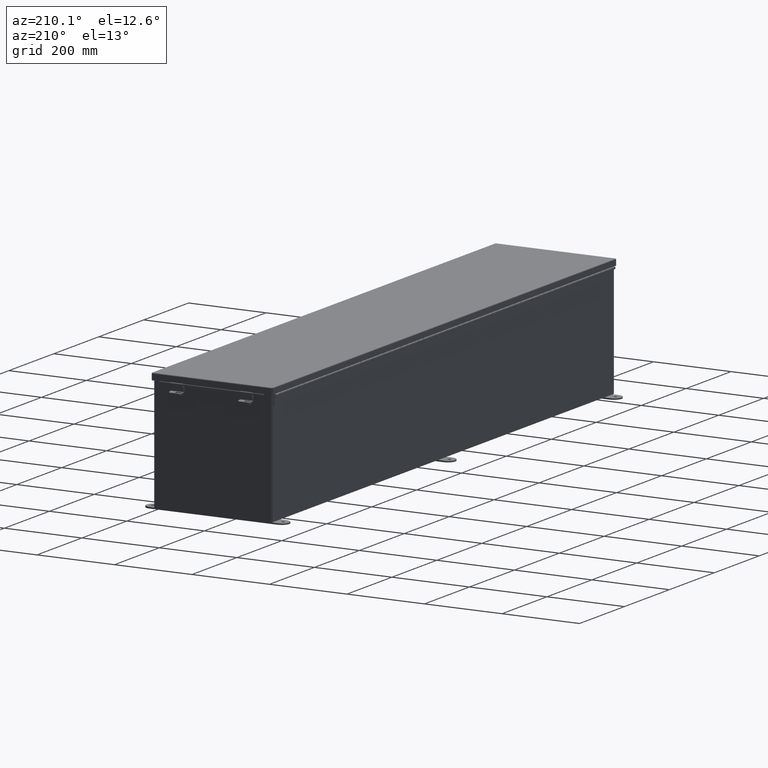
[diagram: clean part render]
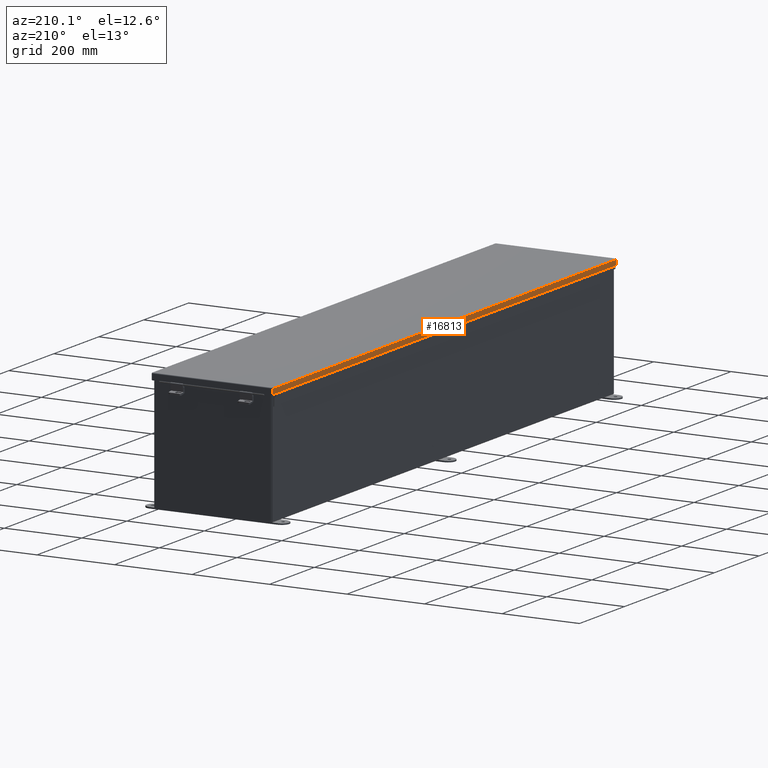
[diagram: same view with one face highlighted and labeled with its STEP entity id]
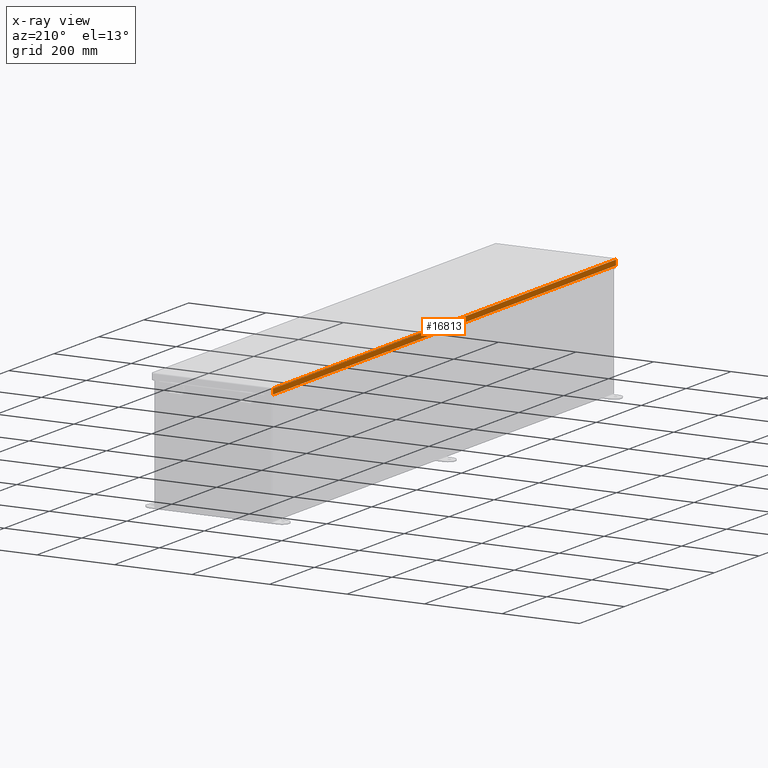
[diagram: x-ray of the same camera — body ghosted, the highlighted face saturated]
A machine part, auxiliary view. The second image highlights one B-rep face of the part: STEP entity #16813.
The next image is the same camera in x-ray: the body ghosted, the highlighted face saturated — about 0% of this face is hidden behind the body in this view.
In plain terms, the highlighted planar face has unit normal (1, -0, -0).
Its self-contained STEP definition (entity closure, byte-faithful):
#2625 = VECTOR ( 'NONE', #39448, 39.37007874015748100 ) ;
#4343 = VERTEX_POINT ( 'NONE', #36922 ) ;
#4940 = FACE_OUTER_BOUND ( 'NONE', #5081, .T. ) ;
#5081 = EDGE_LOOP ( 'NONE', ( #31994, #16710, #41109, #18909 ) ) ;
#5757 = CARTESIAN_POINT ( 'NONE',  ( 6.156250000000017800, -30.15625000000005300, 0.01300000000000010700 ) ) ;
#6450 = EDGE_CURVE ( 'NONE', #22415, #29004, #20612, .T. ) ;
#7465 = CARTESIAN_POINT ( 'NONE',  ( 6.156250000000019500, -7.469896857675719000E-018, 0.5502999999999987900 ) ) ;
#10284 = VERTEX_POINT ( 'NONE', #24036 ) ;
#10636 = PLANE ( 'NONE',  #36967 ) ;
#11756 = LINE ( 'NONE', #5757, #29721 ) ;
#13460 = DIRECTION ( 'NONE',  ( 3.971430846686186800E-015, 2.765943548931161400E-029, 1.000000000000000000 ) ) ;
#16710 = ORIENTED_EDGE ( 'NONE', *, *, #32971, .T. ) ;
#16813 = ADVANCED_FACE ( 'NONE', ( #4940 ), #10636, .F. ) ;
#16853 = CARTESIAN_POINT ( 'NONE',  ( 6.156250000000017800, -30.07447893218818500, 0.0000000000000000000 ) ) ;
#18909 = ORIENTED_EDGE ( 'NONE', *, *, #22290, .F. ) ;
#19105 = CARTESIAN_POINT ( 'NONE',  ( 6.156250000000017800, 30.07447893218808200, -2.404026234424551500E-014 ) ) ;
#20612 = LINE ( 'NONE', #7465, #22719 ) ;
#20840 = DIRECTION ( 'NONE',  ( 3.971430846686186800E-015, 2.765943548931161400E-029, 1.000000000000000000 ) ) ;
#21627 = LINE ( 'NONE', #16853, #28496 ) ;
#22290 = EDGE_CURVE ( 'NONE', #4343, #29004, #21627, .T. ) ;
#22415 = VERTEX_POINT ( 'NONE', #37641 ) ;
#22719 = VECTOR ( 'NONE', #34457, 39.37007874015748100 ) ;
#24036 = CARTESIAN_POINT ( 'NONE',  ( 6.156250000000017800, 30.07447893218808200, 0.01300000000000010700 ) ) ;
#26373 = EDGE_CURVE ( 'NONE', #10284, #4343, #11756, .T. ) ;
#28496 = VECTOR ( 'NONE', #13460, 39.37007874015748100 ) ;
#29004 = VERTEX_POINT ( 'NONE', #31354 ) ;
#29379 = DIRECTION ( 'NONE',  ( -8.430680234606711500E-029, -1.000000000000000000, -2.773339119917619600E-029 ) ) ;
#29577 = LINE ( 'NONE', #19105, #2625 ) ;
#29721 = VECTOR ( 'NONE', #29379, 39.37007874015748100 ) ;
#31354 = CARTESIAN_POINT ( 'NONE',  ( 6.156250000000019500, -30.07447893218818500, 0.5503000000000010100 ) ) ;
#31994 = ORIENTED_EDGE ( 'NONE', *, *, #26373, .F. ) ;
#32971 = EDGE_CURVE ( 'NONE', #10284, #22415, #29577, .T. ) ;
#34457 = DIRECTION ( 'NONE',  ( -8.430680234606711500E-029, -1.000000000000000000, -2.773339119917619600E-029 ) ) ;
#36922 = CARTESIAN_POINT ( 'NONE',  ( 6.156250000000017800, -30.07447893218818500, 0.01300000000000010700 ) ) ;
#36967 = AXIS2_PLACEMENT_3D ( 'NONE', #37504, #41044, #20840 ) ;
#37504 = CARTESIAN_POINT ( 'NONE',  ( 6.156250000000017800, -3.201384367575308500E-018, -2.622574073917692700E-014 ) ) ;
#37641 = CARTESIAN_POINT ( 'NONE',  ( 6.156250000000019500, 30.07447893218808200, 0.5502999999999987900 ) ) ;
#39448 = DIRECTION ( 'NONE',  ( 3.971430846686186800E-015, 2.765943548931161400E-029, 1.000000000000000000 ) ) ;
#41044 = DIRECTION ( 'NONE',  ( -1.000000000000000000, -8.435500478222179700E-029, 3.971430846686186800E-015 ) ) ;
#41109 = ORIENTED_EDGE ( 'NONE', *, *, #6450, .T. ) ;